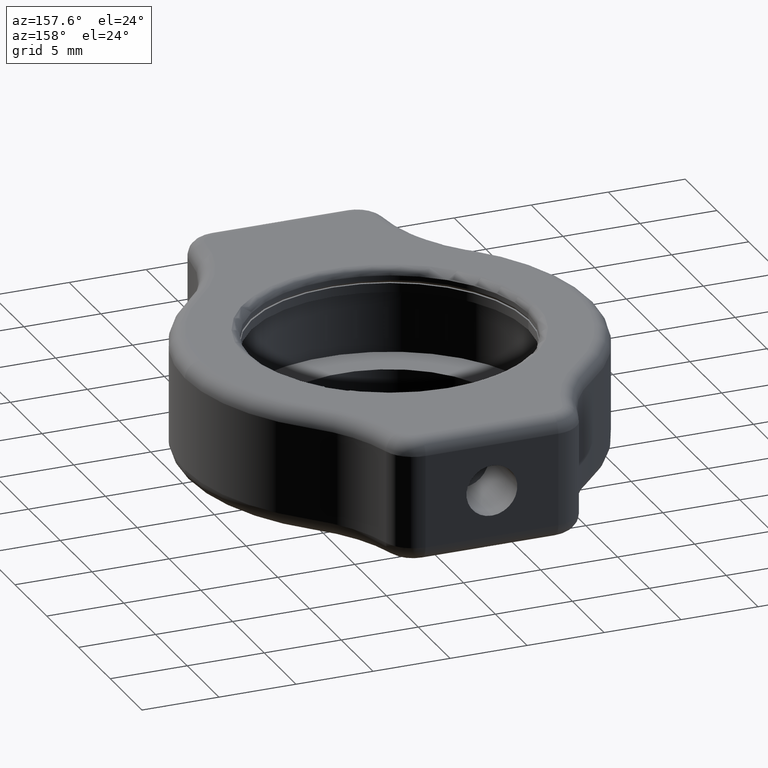
[diagram: clean part render]
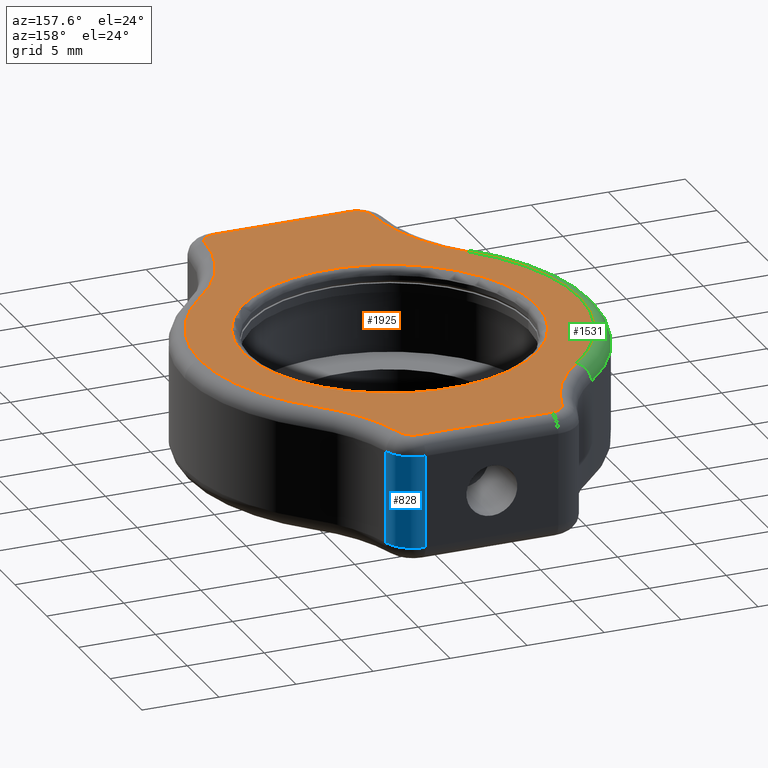
[diagram: same view with three faces highlighted in distinct colors, each labeled with its STEP entity id]
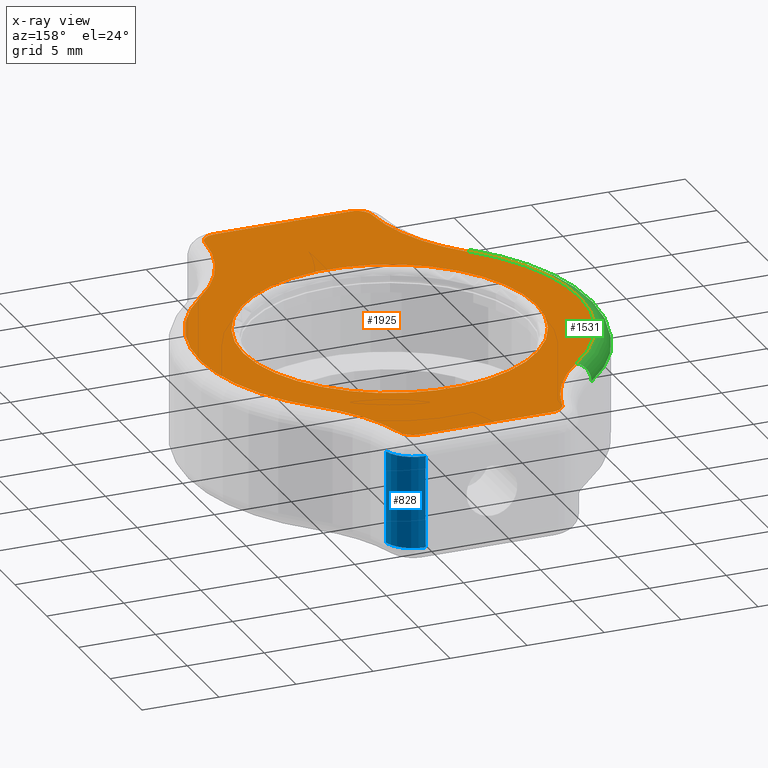
[diagram: x-ray of the same camera — body ghosted, the three highlighted faces saturated]
A machine part, auxiliary view with three faces highlighted in distinct colors.
The next image is the same camera in x-ray (body ghosted, the three faces saturated) — at least one of them is partly hidden behind the body in this view.
Their STEP definitions:

[orange] entity #1925 — the highlighted planar face has unit normal (-0, 0, 1).
#18 = EDGE_LOOP ( 'NONE', ( #558, #2254, #1088, #107, #1758, #1150, #546, #1259, #1314, #118, #1713, #945, #654 ) ) ;
#30 = DIRECTION ( 'NONE',  ( -0.0000000000000000000, 0.0000000000000000000, 1.000000000000000000 ) ) ;
#32 = CIRCLE ( 'NONE', #906, 9.500000000000000000 ) ;
#41 = CIRCLE ( 'NONE', #560, 11.00000000000000000 ) ;
#79 = CIRCLE ( 'NONE', #1202, 11.00000000000000000 ) ;
#86 = DIRECTION ( 'NONE',  ( 1.000000000000000000, 0.0000000000000000000, 0.0000000000000000000 ) ) ;
#107 = ORIENTED_EDGE ( 'NONE', *, *, #1842, .T. ) ;
#118 = ORIENTED_EDGE ( 'NONE', *, *, #1899, .T. ) ;
#128 = EDGE_CURVE ( 'NONE', #2272, #1340, #41, .T. ) ;
#172 = DIRECTION ( 'NONE',  ( -1.000000000000000000, -0.0000000000000000000, -0.0000000000000000000 ) ) ;
#204 = DIRECTION ( 'NONE',  ( -0.0000000000000000000, 0.0000000000000000000, 1.000000000000000000 ) ) ;
#207 = CIRCLE ( 'NONE', #311, 12.30000000000000200 ) ;
#210 = CIRCLE ( 'NONE', #830, 9.500000000000000000 ) ;
#252 = DIRECTION ( 'NONE',  ( 1.000000000000000000, 0.0000000000000000000, 0.0000000000000000000 ) ) ;
#264 = EDGE_CURVE ( 'NONE', #767, #916, #1180, .T. ) ;
#298 = CARTESIAN_POINT ( 'NONE',  ( 2.223772548633339100, 1.633371797953784300, 38.00000000000000700 ) ) ;
#301 = CARTESIAN_POINT ( 'NONE',  ( 2.223772548633339100, 1.633371797953784300, 38.00000000000000700 ) ) ;
#310 = CARTESIAN_POINT ( 'NONE',  ( 10.88526757353055900, -7.099812268220517800, 38.00000000000000700 ) ) ;
#311 = AXIS2_PLACEMENT_3D ( 'NONE', #298, #642, #2046 ) ;
#314 = AXIS2_PLACEMENT_3D ( 'NONE', #846, #2105, #2263 ) ;
#353 = CARTESIAN_POINT ( 'NONE',  ( 14.52377254863334100, 1.633371797953784300, 38.00000000000000700 ) ) ;
#360 = CARTESIAN_POINT ( 'NONE',  ( 2.223772548633339100, 1.633371797953784300, 38.00000000000000700 ) ) ;
#375 = CARTESIAN_POINT ( 'NONE',  ( 6.534730810861848500, 15.73337179795378700, 38.00000000000000700 ) ) ;
#380 = VERTEX_POINT ( 'NONE', #310 ) ;
#437 = CARTESIAN_POINT ( 'NONE',  ( -2.087185713595170800, 16.73337179795378300, 38.00000000000000700 ) ) ;
#440 = LINE ( 'NONE', #702, #2207 ) ;
#449 = AXIS2_PLACEMENT_3D ( 'NONE', #360, #1625, #904 ) ;
#472 = CIRCLE ( 'NONE', #314, 0.9999999999999991100 ) ;
#484 = VERTEX_POINT ( 'NONE', #1762 ) ;
#522 = VECTOR ( 'NONE', #755, 1000.000000000000000 ) ;
#546 = ORIENTED_EDGE ( 'NONE', *, *, #264, .T. ) ;
#548 = DIRECTION ( 'NONE',  ( 0.0000000000000000000, -0.0000000000000000000, -1.000000000000000000 ) ) ;
#558 = ORIENTED_EDGE ( 'NONE', *, *, #1297, .T. ) ;
#559 = DIRECTION ( 'NONE',  ( -0.0000000000000000000, 0.0000000000000000000, 1.000000000000000000 ) ) ;
#560 = AXIS2_PLACEMENT_3D ( 'NONE', #598, #1114, #252 ) ;
#566 = AXIS2_PLACEMENT_3D ( 'NONE', #375, #559, #1080 ) ;
#598 = CARTESIAN_POINT ( 'NONE',  ( -13.73797056107668400, 18.60725635334135600, 38.00000000000000700 ) ) ;
#615 = AXIS2_PLACEMENT_3D ( 'NONE', #1419, #204, #1068 ) ;
#636 = VERTEX_POINT ( 'NONE', #2007 ) ;
#642 = DIRECTION ( 'NONE',  ( -0.0000000000000000000, 0.0000000000000000000, 1.000000000000000000 ) ) ;
#654 = ORIENTED_EDGE ( 'NONE', *, *, #1777, .T. ) ;
#702 = CARTESIAN_POINT ( 'NONE',  ( 2.223772548633339100, 16.73337179795378300, 38.00000000000000700 ) ) ;
#734 = VERTEX_POINT ( 'NONE', #2056 ) ;
#747 = CARTESIAN_POINT ( 'NONE',  ( -2.201033077768470100, -14.26662820204622100, 38.00000000000000700 ) ) ;
#751 = AXIS2_PLACEMENT_3D ( 'NONE', #747, #30, #86 ) ;
#755 = DIRECTION ( 'NONE',  ( 1.000000000000000000, -0.0000000000000000000, 0.0000000000000000000 ) ) ;
#758 = FACE_OUTER_BOUND ( 'NONE', #18, .T. ) ;
#765 = EDGE_CURVE ( 'NONE', #1340, #734, #2015, .T. ) ;
#767 = VERTEX_POINT ( 'NONE', #1503 ) ;
#803 = CARTESIAN_POINT ( 'NONE',  ( 7.505629548151975200, 15.97286217756941400, 38.00000000000000700 ) ) ;
#830 = AXIS2_PLACEMENT_3D ( 'NONE', #1196, #1913, #1740 ) ;
#846 = CARTESIAN_POINT ( 'NONE',  ( -2.087185713595170800, 15.73337179795378700, 38.00000000000000700 ) ) ;
#857 = DIRECTION ( 'NONE',  ( 1.000000000000000000, 9.462128050782579000E-016, 0.0000000000000000000 ) ) ;
#901 = CARTESIAN_POINT ( 'NONE',  ( 6.534730810861848500, 16.73337179795378700, 38.00000000000000700 ) ) ;
#904 = DIRECTION ( 'NONE',  ( 1.000000000000000000, 0.0000000000000000000, 0.0000000000000000000 ) ) ;
#906 = AXIS2_PLACEMENT_3D ( 'NONE', #1389, #1227, #1023 ) ;
#916 = VERTEX_POINT ( 'NONE', #2108 ) ;
#920 = DIRECTION ( 'NONE',  ( 1.000000000000000000, 0.0000000000000000000, 0.0000000000000000000 ) ) ;
#937 = VERTEX_POINT ( 'NONE', #901 ) ;
#945 = ORIENTED_EDGE ( 'NONE', *, *, #2002, .T. ) ;
#997 = FACE_BOUND ( 'NONE', #1566, .T. ) ;
#1006 = EDGE_CURVE ( 'NONE', #636, #1890, #1089, .T. ) ;
#1009 = AXIS2_PLACEMENT_3D ( 'NONE', #1738, #1568, #857 ) ;
#1023 = DIRECTION ( 'NONE',  ( 1.000000000000000000, 0.0000000000000000000, 0.0000000000000000000 ) ) ;
#1065 = EDGE_CURVE ( 'NONE', #1890, #767, #1686, .T. ) ;
#1068 = DIRECTION ( 'NONE',  ( 1.000000000000000000, 0.0000000000000000000, 0.0000000000000000000 ) ) ;
#1070 = CARTESIAN_POINT ( 'NONE',  ( 18.18551565834336300, 18.60725635334135900, 38.00000000000000700 ) ) ;
#1080 = DIRECTION ( 'NONE',  ( 1.000000000000000000, 0.0000000000000000000, 0.0000000000000000000 ) ) ;
#1088 = ORIENTED_EDGE ( 'NONE', *, *, #765, .T. ) ;
#1089 = CIRCLE ( 'NONE', #751, 0.9999999999999974500 ) ;
#1114 = DIRECTION ( 'NONE',  ( 0.0000000000000000000, -0.0000000000000000000, -1.000000000000000000 ) ) ;
#1134 = DIRECTION ( 'NONE',  ( -0.0000000000000000000, 0.0000000000000000000, 1.000000000000000000 ) ) ;
#1150 = ORIENTED_EDGE ( 'NONE', *, *, #1065, .T. ) ;
#1180 = CIRCLE ( 'NONE', #1632, 0.9999999999999974500 ) ;
#1182 = CARTESIAN_POINT ( 'NONE',  ( -3.058084450885296200, 15.97286217756941800, 38.00000000000000700 ) ) ;
#1191 = CIRCLE ( 'NONE', #449, 12.30000000000000200 ) ;
#1196 = CARTESIAN_POINT ( 'NONE',  ( 2.223772548633339100, 1.633371797953784300, 38.00000000000000700 ) ) ;
#1202 = AXIS2_PLACEMENT_3D ( 'NONE', #1070, #2285, #1237 ) ;
#1224 = AXIS2_PLACEMENT_3D ( 'NONE', #301, #1712, #2030 ) ;
#1227 = DIRECTION ( 'NONE',  ( 0.0000000000000000000, -0.0000000000000000000, -1.000000000000000000 ) ) ;
#1231 = ORIENTED_EDGE ( 'NONE', *, *, #1252, .T. ) ;
#1237 = DIRECTION ( 'NONE',  ( 1.000000000000000000, -1.892425610156517000E-015, 0.0000000000000000000 ) ) ;
#1250 = CIRCLE ( 'NONE', #566, 0.9999999999999991100 ) ;
#1252 = EDGE_CURVE ( 'NONE', #484, #1472, #210, .T. ) ;
#1259 = ORIENTED_EDGE ( 'NONE', *, *, #2005, .T. ) ;
#1283 = CARTESIAN_POINT ( 'NONE',  ( 6.648578175035151400, -15.26662820204621300, 38.00000000000000700 ) ) ;
#1297 = EDGE_CURVE ( 'NONE', #1573, #2272, #472, .T. ) ;
#1314 = ORIENTED_EDGE ( 'NONE', *, *, #1735, .T. ) ;
#1333 = CARTESIAN_POINT ( 'NONE',  ( 10.64992878251460000, 10.59383446023992400, 38.00000000000000700 ) ) ;
#1340 = VERTEX_POINT ( 'NONE', #1896 ) ;
#1389 = CARTESIAN_POINT ( 'NONE',  ( 2.223772548633339100, 1.633371797953784300, 38.00000000000000700 ) ) ;
#1419 = CARTESIAN_POINT ( 'NONE',  ( 2.223772548633339100, 1.633371797953784300, 38.00000000000000700 ) ) ;
#1433 = EDGE_CURVE ( 'NONE', #2231, #1623, #79, .T. ) ;
#1472 = VERTEX_POINT ( 'NONE', #2167 ) ;
#1503 = CARTESIAN_POINT ( 'NONE',  ( 6.648578175035151400, -15.26662820204621300, 38.00000000000000700 ) ) ;
#1562 = DIRECTION ( 'NONE',  ( 1.000000000000000000, 0.0000000000000000000, 0.0000000000000000000 ) ) ;
#1566 = EDGE_LOOP ( 'NONE', ( #1231, #2176 ) ) ;
#1568 = DIRECTION ( 'NONE',  ( 0.0000000000000000000, -0.0000000000000000000, -1.000000000000000000 ) ) ;
#1573 = VERTEX_POINT ( 'NONE', #437 ) ;
#1623 = VERTEX_POINT ( 'NONE', #803 ) ;
#1625 = DIRECTION ( 'NONE',  ( -0.0000000000000000000, 0.0000000000000000000, 1.000000000000000000 ) ) ;
#1632 = AXIS2_PLACEMENT_3D ( 'NONE', #2198, #1134, #1562 ) ;
#1686 = LINE ( 'NONE', #1283, #522 ) ;
#1712 = DIRECTION ( 'NONE',  ( -0.0000000000000000000, 0.0000000000000000000, 1.000000000000000000 ) ) ;
#1713 = ORIENTED_EDGE ( 'NONE', *, *, #1433, .T. ) ;
#1735 = EDGE_CURVE ( 'NONE', #380, #1810, #207, .T. ) ;
#1738 = CARTESIAN_POINT ( 'NONE',  ( -14.18377493755407800, -14.90997688024632200, 38.00000000000000700 ) ) ;
#1740 = DIRECTION ( 'NONE',  ( 1.000000000000000000, 0.0000000000000000000, 0.0000000000000000000 ) ) ;
#1747 = CARTESIAN_POINT ( 'NONE',  ( -2.201033077768470100, -15.26662820204621700, 38.00000000000000700 ) ) ;
#1752 = CIRCLE ( 'NONE', #1009, 11.00000000000000700 ) ;
#1758 = ORIENTED_EDGE ( 'NONE', *, *, #1006, .T. ) ;
#1762 = CARTESIAN_POINT ( 'NONE',  ( 11.72377254863333800, 1.633371797953784300, 38.00000000000000700 ) ) ;
#1774 = PLANE ( 'NONE',  #615 ) ;
#1777 = EDGE_CURVE ( 'NONE', #937, #1573, #440, .T. ) ;
#1788 = EDGE_CURVE ( 'NONE', #1472, #484, #32, .T. ) ;
#1810 = VERTEX_POINT ( 'NONE', #353 ) ;
#1842 = EDGE_CURVE ( 'NONE', #734, #636, #1752, .T. ) ;
#1890 = VERTEX_POINT ( 'NONE', #1747 ) ;
#1896 = CARTESIAN_POINT ( 'NONE',  ( -6.202383685247916400, 10.59383446023992900, 38.00000000000000700 ) ) ;
#1899 = EDGE_CURVE ( 'NONE', #1810, #2231, #1191, .T. ) ;
#1913 = DIRECTION ( 'NONE',  ( 0.0000000000000000000, -0.0000000000000000000, -1.000000000000000000 ) ) ;
#1925 = ADVANCED_FACE ( 'NONE', ( #997, #758 ), #1774, .T. ) ;
#1945 = CIRCLE ( 'NONE', #2028, 11.00000000000000400 ) ;
#1975 = CARTESIAN_POINT ( 'NONE',  ( 18.63132003482075700, -14.90997688024631900, 38.00000000000000700 ) ) ;
#2002 = EDGE_CURVE ( 'NONE', #1623, #937, #1250, .T. ) ;
#2005 = EDGE_CURVE ( 'NONE', #916, #380, #1945, .T. ) ;
#2007 = CARTESIAN_POINT ( 'NONE',  ( -3.199594899417268000, -14.32024059189622800, 38.00000000000000700 ) ) ;
#2015 = CIRCLE ( 'NONE', #1224, 12.30000000000000200 ) ;
#2028 = AXIS2_PLACEMENT_3D ( 'NONE', #1975, #548, #920 ) ;
#2030 = DIRECTION ( 'NONE',  ( 1.000000000000000000, 0.0000000000000000000, 0.0000000000000000000 ) ) ;
#2046 = DIRECTION ( 'NONE',  ( 1.000000000000000000, 0.0000000000000000000, 0.0000000000000000000 ) ) ;
#2056 = CARTESIAN_POINT ( 'NONE',  ( -6.437722476263878900, -7.099812268220521400, 38.00000000000000700 ) ) ;
#2105 = DIRECTION ( 'NONE',  ( -0.0000000000000000000, 0.0000000000000000000, 1.000000000000000000 ) ) ;
#2108 = CARTESIAN_POINT ( 'NONE',  ( 7.647139996683949700, -14.32024059189622800, 38.00000000000000700 ) ) ;
#2167 = CARTESIAN_POINT ( 'NONE',  ( -7.276227451366660900, 1.633371797953785400, 38.00000000000000700 ) ) ;
#2176 = ORIENTED_EDGE ( 'NONE', *, *, #1788, .T. ) ;
#2198 = CARTESIAN_POINT ( 'NONE',  ( 6.648578175035151400, -14.26662820204622100, 38.00000000000000700 ) ) ;
#2207 = VECTOR ( 'NONE', #172, 1000.000000000000000 ) ;
#2231 = VERTEX_POINT ( 'NONE', #1333 ) ;
#2254 = ORIENTED_EDGE ( 'NONE', *, *, #128, .T. ) ;
#2263 = DIRECTION ( 'NONE',  ( 1.000000000000000000, 0.0000000000000000000, 0.0000000000000000000 ) ) ;
#2272 = VERTEX_POINT ( 'NONE', #1182 ) ;
#2285 = DIRECTION ( 'NONE',  ( 0.0000000000000000000, -0.0000000000000000000, -1.000000000000000000 ) ) ;

[blue] entity #828 — the highlighted cylindrical surface (edge-blend (fillet) strip) has radius 2 mm, axis along (-0, -0, -1).
#12 = LINE ( 'NONE', #2017, #1025 ) ;
#60 = ORIENTED_EDGE ( 'NONE', *, *, #839, .T. ) ;
#62 = EDGE_CURVE ( 'NONE', #1315, #1767, #850, .T. ) ;
#70 = DIRECTION ( 'NONE',  ( -0.0000000000000000000, -0.0000000000000000000, -1.000000000000000000 ) ) ;
#161 = CARTESIAN_POINT ( 'NONE',  ( 6.534730810861848500, 15.73337179795378700, 31.00000000000000400 ) ) ;
#429 = ORIENTED_EDGE ( 'NONE', *, *, #62, .F. ) ;
#515 = DIRECTION ( 'NONE',  ( -1.000000000000000000, 0.0000000000000000000, 0.0000000000000000000 ) ) ;
#585 = DIRECTION ( 'NONE',  ( -0.0000000000000000000, -0.0000000000000000000, -1.000000000000000000 ) ) ;
#603 = CIRCLE ( 'NONE', #1750, 1.999999999999998200 ) ;
#655 = DIRECTION ( 'NONE',  ( -0.0000000000000000000, 0.0000000000000000000, 1.000000000000000000 ) ) ;
#666 = CARTESIAN_POINT ( 'NONE',  ( 6.534730810861848500, 15.73337179795378700, 37.00000000000000700 ) ) ;
#686 = DIRECTION ( 'NONE',  ( -0.0000000000000000000, -0.0000000000000000000, -1.000000000000000000 ) ) ;
#733 = CARTESIAN_POINT ( 'NONE',  ( 8.476528285442102000, 16.21235255718504200, 37.00000000000000700 ) ) ;
#828 = ADVANCED_FACE ( 'NONE', ( #1821 ), #1238, .T. ) ;
#839 = EDGE_CURVE ( 'NONE', #2282, #1767, #603, .T. ) ;
#847 = EDGE_LOOP ( 'NONE', ( #965, #60, #429, #1510 ) ) ;
#850 = LINE ( 'NONE', #1645, #1699 ) ;
#862 = CARTESIAN_POINT ( 'NONE',  ( 6.534730810861848500, 17.73337179795378300, 37.00000000000000700 ) ) ;
#876 = DIRECTION ( 'NONE',  ( 0.0000000000000000000, -0.0000000000000000000, -1.000000000000000000 ) ) ;
#965 = ORIENTED_EDGE ( 'NONE', *, *, #2123, .T. ) ;
#1025 = VECTOR ( 'NONE', #585, 1000.000000000000000 ) ;
#1110 = VERTEX_POINT ( 'NONE', #733 ) ;
#1158 = CARTESIAN_POINT ( 'NONE',  ( 6.534730810861848500, 17.73337179795378300, 31.00000000000000400 ) ) ;
#1203 = DIRECTION ( 'NONE',  ( 1.000000000000000000, 1.734723475976808700E-015, 0.0000000000000000000 ) ) ;
#1238 = CYLINDRICAL_SURFACE ( 'NONE', #2244, 1.999999999999999100 ) ;
#1315 = VERTEX_POINT ( 'NONE', #862 ) ;
#1319 = EDGE_CURVE ( 'NONE', #1315, #1110, #1782, .T. ) ;
#1425 = AXIS2_PLACEMENT_3D ( 'NONE', #666, #876, #1203 ) ;
#1510 = ORIENTED_EDGE ( 'NONE', *, *, #1319, .T. ) ;
#1555 = CARTESIAN_POINT ( 'NONE',  ( 8.476528285442102000, 16.21235255718504200, 31.00000000000000400 ) ) ;
#1645 = CARTESIAN_POINT ( 'NONE',  ( 6.534730810861848500, 17.73337179795378300, 38.00000000000000700 ) ) ;
#1699 = VECTOR ( 'NONE', #70, 1000.000000000000000 ) ;
#1750 = AXIS2_PLACEMENT_3D ( 'NONE', #161, #655, #2065 ) ;
#1767 = VERTEX_POINT ( 'NONE', #1158 ) ;
#1782 = CIRCLE ( 'NONE', #1425, 1.999999999999998200 ) ;
#1821 = FACE_OUTER_BOUND ( 'NONE', #847, .T. ) ;
#2017 = CARTESIAN_POINT ( 'NONE',  ( 8.476528285442102000, 16.21235255718504200, 38.00000000000000700 ) ) ;
#2065 = DIRECTION ( 'NONE',  ( 1.000000000000000000, 0.0000000000000000000, 0.0000000000000000000 ) ) ;
#2090 = CARTESIAN_POINT ( 'NONE',  ( 6.534730810861848500, 15.73337179795378700, 38.00000000000000700 ) ) ;
#2123 = EDGE_CURVE ( 'NONE', #1110, #2282, #12, .T. ) ;
#2244 = AXIS2_PLACEMENT_3D ( 'NONE', #2090, #686, #515 ) ;
#2282 = VERTEX_POINT ( 'NONE', #1555 ) ;

[green] entity #1531 — the highlighted toroidal blend (fillet) surface has major radius 12.3 mm and minor (blend) radius 1 mm.
#66 = VERTEX_POINT ( 'NONE', #1674 ) ;
#236 = EDGE_CURVE ( 'NONE', #66, #1340, #1147, .T. ) ;
#301 = CARTESIAN_POINT ( 'NONE',  ( 2.223772548633339100, 1.633371797953784300, 38.00000000000000700 ) ) ;
#334 = AXIS2_PLACEMENT_3D ( 'NONE', #646, #2206, #982 ) ;
#338 = ORIENTED_EDGE ( 'NONE', *, *, #2234, .F. ) ;
#438 = ORIENTED_EDGE ( 'NONE', *, *, #1078, .F. ) ;
#450 = CARTESIAN_POINT ( 'NONE',  ( -6.437722476263878900, -7.099812268220521400, 37.00000000000000700 ) ) ;
#527 = TOROIDAL_SURFACE ( 'NONE', #1994, 12.30000000000000200, 1.000000000000000000 ) ;
#545 = ORIENTED_EDGE ( 'NONE', *, *, #236, .F. ) ;
#567 = DIRECTION ( 'NONE',  ( 1.000000000000000000, 0.0000000000000000000, 0.0000000000000000000 ) ) ;
#569 = CIRCLE ( 'NONE', #2128, 13.30000000000000100 ) ;
#627 = ORIENTED_EDGE ( 'NONE', *, *, #765, .F. ) ;
#646 = CARTESIAN_POINT ( 'NONE',  ( -6.202383685247918200, 10.59383446023992900, 37.00000000000000700 ) ) ;
#723 = EDGE_CURVE ( 'NONE', #921, #734, #2171, .T. ) ;
#734 = VERTEX_POINT ( 'NONE', #2056 ) ;
#763 = CARTESIAN_POINT ( 'NONE',  ( 2.223772548633339100, 1.633371797953784300, 37.00000000000000700 ) ) ;
#765 = EDGE_CURVE ( 'NONE', #1340, #734, #2015, .T. ) ;
#799 = AXIS2_PLACEMENT_3D ( 'NONE', #450, #1866, #2232 ) ;
#921 = VERTEX_POINT ( 'NONE', #1050 ) ;
#930 = ORIENTED_EDGE ( 'NONE', *, *, #723, .T. ) ;
#982 = DIRECTION ( 'NONE',  ( -0.6850533523480699700, 0.7284928993728566600, 0.0000000000000000000 ) ) ;
#1050 = CARTESIAN_POINT ( 'NONE',  ( -7.141909063653896400, -7.809827232950138600, 37.00000000000000700 ) ) ;
#1077 = CARTESIAN_POINT ( 'NONE',  ( 2.223772548633339100, 1.633371797953784300, 37.00000000000000700 ) ) ;
#1078 = EDGE_CURVE ( 'NONE', #921, #1876, #569, .T. ) ;
#1098 = DIRECTION ( 'NONE',  ( 1.000000000000000000, 1.777113335352180200E-015, 0.0000000000000000000 ) ) ;
#1147 = CIRCLE ( 'NONE', #334, 0.9999999999999996700 ) ;
#1224 = AXIS2_PLACEMENT_3D ( 'NONE', #301, #1712, #2030 ) ;
#1340 = VERTEX_POINT ( 'NONE', #1896 ) ;
#1380 = CARTESIAN_POINT ( 'NONE',  ( -11.07622745136666300, 1.633371797953784300, 37.00000000000000700 ) ) ;
#1387 = DIRECTION ( 'NONE',  ( 1.000000000000000000, 0.0000000000000000000, 0.0000000000000000000 ) ) ;
#1498 = CIRCLE ( 'NONE', #2158, 13.30000000000000100 ) ;
#1531 = ADVANCED_FACE ( 'NONE', ( #1717 ), #527, .T. ) ;
#1565 = CARTESIAN_POINT ( 'NONE',  ( 2.223772548633339100, 1.633371797953784300, 37.00000000000000700 ) ) ;
#1622 = DIRECTION ( 'NONE',  ( 0.0000000000000000000, -0.0000000000000000000, -1.000000000000000000 ) ) ;
#1627 = DIRECTION ( 'NONE',  ( -0.0000000000000000000, 0.0000000000000000000, 1.000000000000000000 ) ) ;
#1674 = CARTESIAN_POINT ( 'NONE',  ( -6.887437037595987000, 11.32232735961278500, 37.00000000000000700 ) ) ;
#1712 = DIRECTION ( 'NONE',  ( -0.0000000000000000000, 0.0000000000000000000, 1.000000000000000000 ) ) ;
#1717 = FACE_OUTER_BOUND ( 'NONE', #2089, .T. ) ;
#1866 = DIRECTION ( 'NONE',  ( -0.7100149647296178900, 0.7041865873900180500, 1.011062299785524800E-017 ) ) ;
#1876 = VERTEX_POINT ( 'NONE', #1380 ) ;
#1896 = CARTESIAN_POINT ( 'NONE',  ( -6.202383685247916400, 10.59383446023992900, 38.00000000000000700 ) ) ;
#1994 = AXIS2_PLACEMENT_3D ( 'NONE', #763, #1627, #567 ) ;
#2015 = CIRCLE ( 'NONE', #1224, 12.30000000000000200 ) ;
#2030 = DIRECTION ( 'NONE',  ( 1.000000000000000000, 0.0000000000000000000, 0.0000000000000000000 ) ) ;
#2056 = CARTESIAN_POINT ( 'NONE',  ( -6.437722476263878900, -7.099812268220521400, 38.00000000000000700 ) ) ;
#2089 = EDGE_LOOP ( 'NONE', ( #930, #627, #545, #338, #438 ) ) ;
#2128 = AXIS2_PLACEMENT_3D ( 'NONE', #1077, #1622, #1098 ) ;
#2158 = AXIS2_PLACEMENT_3D ( 'NONE', #1565, #2258, #1387 ) ;
#2171 = CIRCLE ( 'NONE', #799, 0.9999999999999993300 ) ;
#2206 = DIRECTION ( 'NONE',  ( 0.7284928993728572200, 0.6850533523480695200, -1.263733734624505200E-015 ) ) ;
#2232 = DIRECTION ( 'NONE',  ( -0.7041865873900180500, -0.7100149647296178900, 0.0000000000000000000 ) ) ;
#2234 = EDGE_CURVE ( 'NONE', #1876, #66, #1498, .T. ) ;
#2258 = DIRECTION ( 'NONE',  ( 0.0000000000000000000, -0.0000000000000000000, -1.000000000000000000 ) ) ;